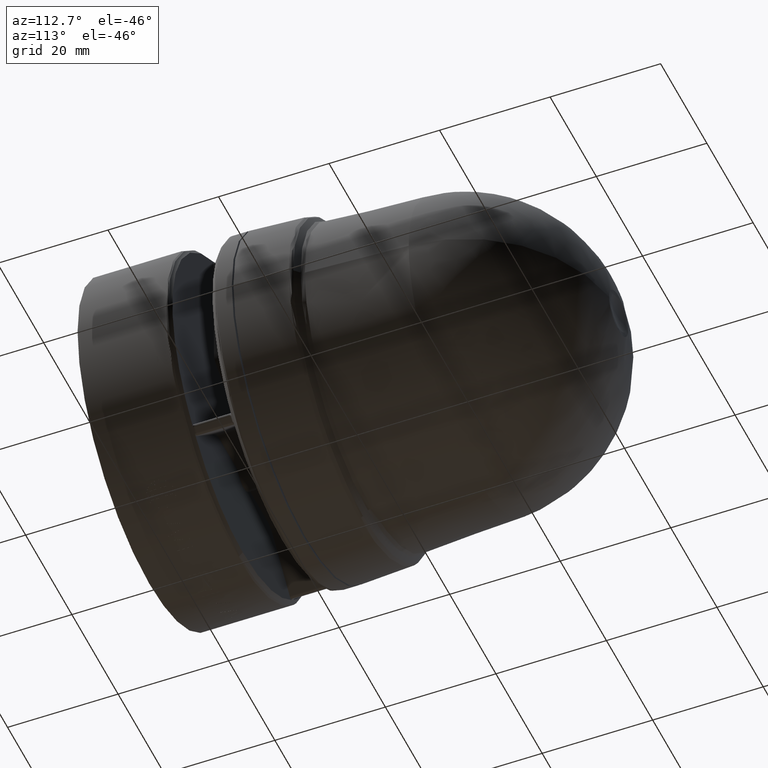
[diagram: clean part render]
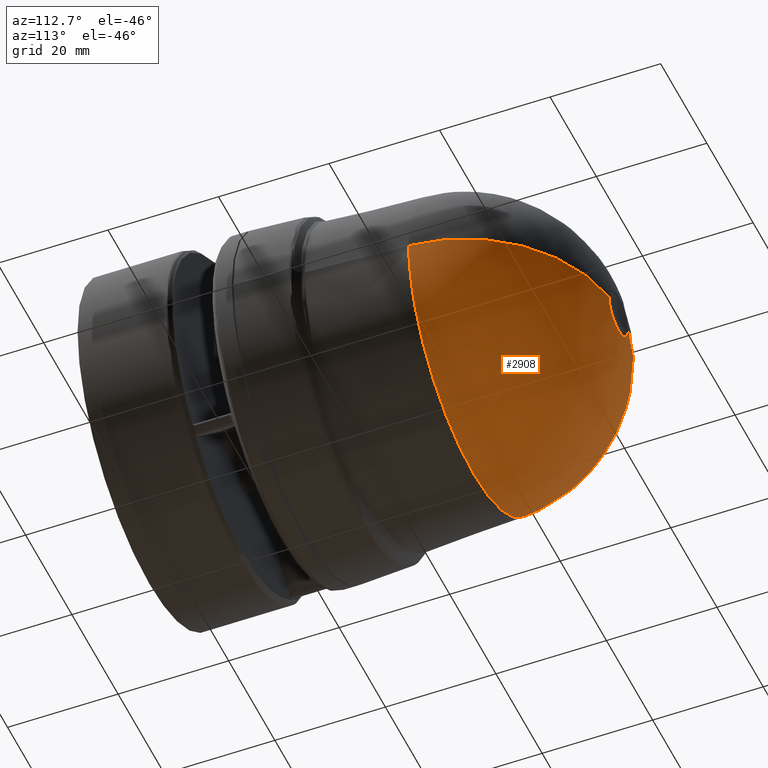
[diagram: same view with one face highlighted and labeled with its STEP entity id]
A machine part, auxiliary view. The second image highlights one B-rep face of the part: STEP entity #2908.
In plain terms, the highlighted face is a freeform B-spline surface patch.
Its self-contained STEP definition (entity closure, byte-faithful):
#125 = EDGE_CURVE ( 'NONE', #10731, #12014, #693, .T. ) ;
#296 = AXIS2_PLACEMENT_3D ( 'NONE', #4686, #6772, #10442 ) ;
#307 = CIRCLE ( 'NONE', #9405, 0.1625516183322732178 ) ;
#582 = ORIENTED_EDGE ( 'NONE', *, *, #10356, .T. ) ;
#693 = CIRCLE ( 'NONE', #296, 1.102392963724703190 ) ;
#734 = CARTESIAN_POINT ( 'NONE',  ( 3.432516770453078515E-15, 2.320643604827529405, -1.104617209937225210E-16 ) ) ;
#799 = DIRECTION ( 'NONE',  ( 4.996003610813243875E-16, 0.0000000000000000000, 1.000000000000000000 ) ) ;
#848 = CARTESIAN_POINT ( 'NONE',  ( 0.1625516183322885111, 2.320643604827528961, -9.116426316750745713E-17 ) ) ;
#878 = AXIS2_PLACEMENT_3D ( 'NONE', #5551, #2690, #3580 ) ;
#1020 = CIRCLE ( 'NONE', #11747, 1.103905828296606328 ) ;
#1534 = DIRECTION ( 'NONE',  ( -5.608327010386899894E-16, 0.0000000000000000000, -1.000000000000000000 ) ) ;
#1564 = CARTESIAN_POINT ( 'NONE',  ( 1.103262619037717940, 1.251698917037178616, -0.03672543545908973223 ) ) ;
#1621 = CARTESIAN_POINT ( 'NONE',  ( -1.032762125808726505, 3.330770600440598361, 2.298261138009444271E-14 ) ) ;
#1655 = CARTESIAN_POINT ( 'NONE',  ( -1.102392963724700747, 1.286545304183791982, 1.264713726255939151E-16 ) ) ;
#1742 = CARTESIAN_POINT ( 'NONE',  ( 1.032762125808734721, 3.330770600440608575, -1.189679486954980492 ) ) ;
#1889 = CIRCLE ( 'NONE', #878, 0.1625516183322732178 ) ;
#1975 = EDGE_CURVE ( 'NONE', #12014, #4078, #1020, .T. ) ;
#2202 = CARTESIAN_POINT ( 'NONE',  ( 1.102392963724705410, 1.286545304183789762, -2.172139929085339279E-17 ) ) ;
#2353 = DIRECTION ( 'NONE',  ( -1.000000000000000000, 9.898844352981342160E-16, 5.608327010386898908E-16 ) ) ;
#2575 = CARTESIAN_POINT ( 'NONE',  ( 1.032762125808733611, 2.507848937092799879, -2.048828611190345761 ) ) ;
#2690 = DIRECTION ( 'NONE',  ( -1.132425414142530067E-15, -1.000000000000000000, 1.011672557810669978E-16 ) ) ;
#2728 = ORIENTED_EDGE ( 'NONE', *, *, #7100, .T. ) ;
#2908 = ADVANCED_FACE ( 'NONE', ( #5555 ), #12273, .T. ) ;
#3178 = ORIENTED_EDGE ( 'NONE', *, *, #125, .T. ) ;
#3425 = ORIENTED_EDGE ( 'NONE', *, *, #6225, .T. ) ;
#3462 = CARTESIAN_POINT ( 'NONE',  ( -1.032762125808726950, 3.330770600440610796, -1.189679486954979160 ) ) ;
#3580 = DIRECTION ( 'NONE',  ( 4.996003610813243875E-16, 0.0000000000000000000, 1.000000000000000000 ) ) ;
#3705 = CARTESIAN_POINT ( 'NONE',  ( 1.103262619037717940, 1.266449861196244475, -2.171627302781670616E-16 ) ) ;
#4078 = VERTEX_POINT ( 'NONE', #5394 ) ;
#4444 = VERTEX_POINT ( 'NONE', #7324 ) ;
#4686 = CARTESIAN_POINT ( 'NONE',  ( 2.377636372087535772E-15, 1.286545304183790872, -2.172139929085339279E-17 ) ) ;
#4731 = CARTESIAN_POINT ( 'NONE',  ( -1.103262619037713499, 1.266449861196247140, -0.02132511083481115205 ) ) ;
#5394 = CARTESIAN_POINT ( 'NONE',  ( -0.1625516183322816277, 2.320643604827529849, 9.116426316750388260E-17 ) ) ;
#5550 = CARTESIAN_POINT ( 'NONE',  ( 2.196052865433114747E-15, 1.228771337057728452, -1.097148804524055212E-30 ) ) ;
#5551 = CARTESIAN_POINT ( 'NONE',  ( 3.432516770453078515E-15, 2.320643604827529405, -1.104617209937225210E-16 ) ) ;
#5555 = FACE_OUTER_BOUND ( 'NONE', #10266, .T. ) ;
#6225 = EDGE_CURVE ( 'NONE', #7599, #10731, #10102, .T. ) ;
#6384 = CARTESIAN_POINT ( 'NONE',  ( -1.032762125808728282, 2.507848937092802100, -2.048828611190344429 ) ) ;
#6772 = DIRECTION ( 'NONE',  ( 1.018085967569689825E-15, 1.000000000000000000, -2.994370492852071350E-17 ) ) ;
#7100 = EDGE_CURVE ( 'NONE', #4078, #4444, #307, .T. ) ;
#7249 = AXIS2_PLACEMENT_3D ( 'NONE', #12166, #1534, #12105 ) ;
#7299 = ORIENTED_EDGE ( 'NONE', *, *, #1975, .T. ) ;
#7324 = CARTESIAN_POINT ( 'NONE',  ( 3.331399091331236919E-15, 2.320643604827529405, -0.1625516183322736896 ) ) ;
#7503 = CARTESIAN_POINT ( 'NONE',  ( 1.103262619037717940, 1.230393580776663720, -0.03764358519818820914 ) ) ;
#7599 = VERTEX_POINT ( 'NONE', #848 ) ;
#8521 = CARTESIAN_POINT ( 'NONE',  ( 1.032762125808735387, 3.330770600440596585, 2.182419783499890616E-14 ) ) ;
#9405 = AXIS2_PLACEMENT_3D ( 'NONE', #734, #9477, #799 ) ;
#9409 = DIRECTION ( 'NONE',  ( -5.608327010386899894E-16, 0.0000000000000000000, -1.000000000000000000 ) ) ;
#9477 = DIRECTION ( 'NONE',  ( -1.132425414142530067E-15, -1.000000000000000000, 1.011672557810669978E-16 ) ) ;
#9478 = CARTESIAN_POINT ( 'NONE',  ( 1.032762125808732279, 1.319272628713834328, -2.100050099276371984 ) ) ;
#10102 = CIRCLE ( 'NONE', #7249, 1.103905828296606328 ) ;
#10250 = CARTESIAN_POINT ( 'NONE',  ( -1.032762125808729614, 1.319272628713836548, -2.100050099276371096 ) ) ;
#10266 = EDGE_LOOP ( 'NONE', ( #3178, #7299, #2728, #582, #3425 ) ) ;
#10356 = EDGE_CURVE ( 'NONE', #4444, #7599, #1889, .T. ) ;
#10426 = CARTESIAN_POINT ( 'NONE',  ( 1.103262619037717940, 1.266449861196245141, -0.02132511083481223799 ) ) ;
#10442 = DIRECTION ( 'NONE',  ( 1.000000000000000000, -9.912428992413193165E-16, 0.0000000000000000000 ) ) ;
#10489 = CARTESIAN_POINT ( 'NONE',  ( -1.103262619037713499, 1.266449861196247140, 1.020328778901717258E-15 ) ) ;
#10731 = VERTEX_POINT ( 'NONE', #2202 ) ;
#11195 = CARTESIAN_POINT ( 'NONE',  ( -1.103262619037713499, 1.230393580776665940, -0.03764358519818739035 ) ) ;
#11437 = CARTESIAN_POINT ( 'NONE',  ( -1.103262619037713499, 1.251698917037181280, -0.03672543545908890650 ) ) ;
#11747 = AXIS2_PLACEMENT_3D ( 'NONE', #5550, #9409, #2353 ) ;
#12014 = VERTEX_POINT ( 'NONE', #1655 ) ;
#12105 = DIRECTION ( 'NONE',  ( -1.000000000000000000, 9.898844352981342160E-16, 5.608327010386898908E-16 ) ) ;
#12166 = CARTESIAN_POINT ( 'NONE',  ( 2.196052865433114747E-15, 1.228771337057728452, -1.097148804524055212E-30 ) ) ;
#12273 =( BOUNDED_SURFACE ( )  B_SPLINE_SURFACE ( 3, 3, ( 
 ( #10489, #4731, #11437, #11195 ),
 ( #1621, #3462, #6384, #10250 ),
 ( #8521, #1742, #2575, #9478 ),
 ( #3705, #10426, #1564, #7503 ) ),
 .UNSPECIFIED., .F., .F., .F. ) 
 B_SPLINE_SURFACE_WITH_KNOTS ( ( 4, 4 ),
 ( 4, 4 ),
 ( 0.0000000000000000000, 1.000000000000000000 ),
 ( 0.0000000000000000000, 1.000000000000000000 ),
 .UNSPECIFIED. ) 
 GEOMETRIC_REPRESENTATION_ITEM ( )  RATIONAL_B_SPLINE_SURFACE ( (
 ( 1.000000000000000000, 0.8147790412773878721, 0.8147790412773878721, 1.000000000000000000),
 ( 0.3560880062850154126, 0.2901330443712813456, 0.2901330443712813456, 0.3560880062850154126),
 ( 0.3560880062850154126, 0.2901330443712813456, 0.2901330443712813456, 0.3560880062850154126),
 ( 1.000000000000000000, 0.8147790412773878721, 0.8147790412773878721, 1.000000000000000000) ) ) 
 REPRESENTATION_ITEM ( '' )  SURFACE ( )  );